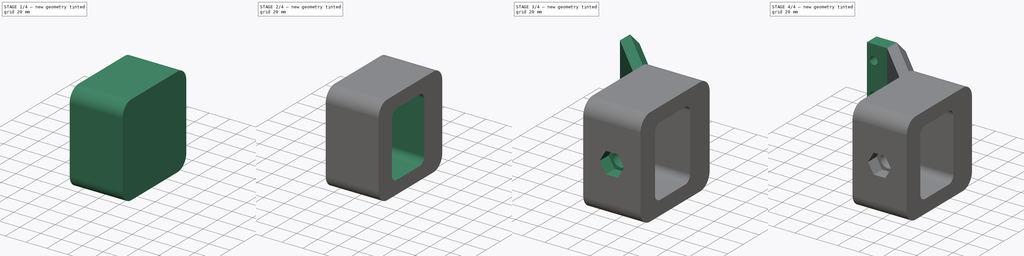
[diagram: build sequence overview — one tinted view per stage of 4, left to right]
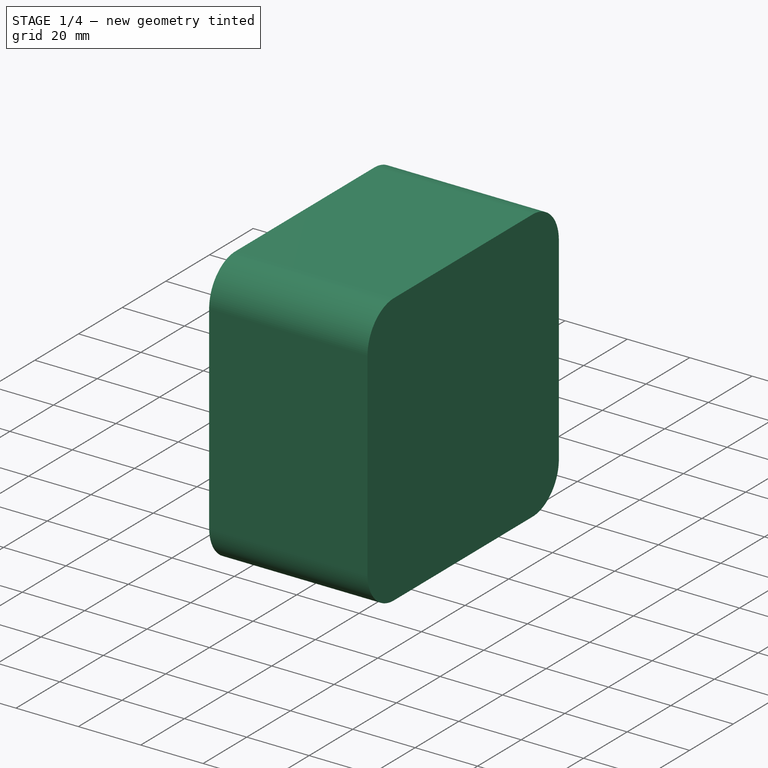
[diagram: stage 1 of 4 — iso view after this stage's code; geometry added in this stage tinted green]
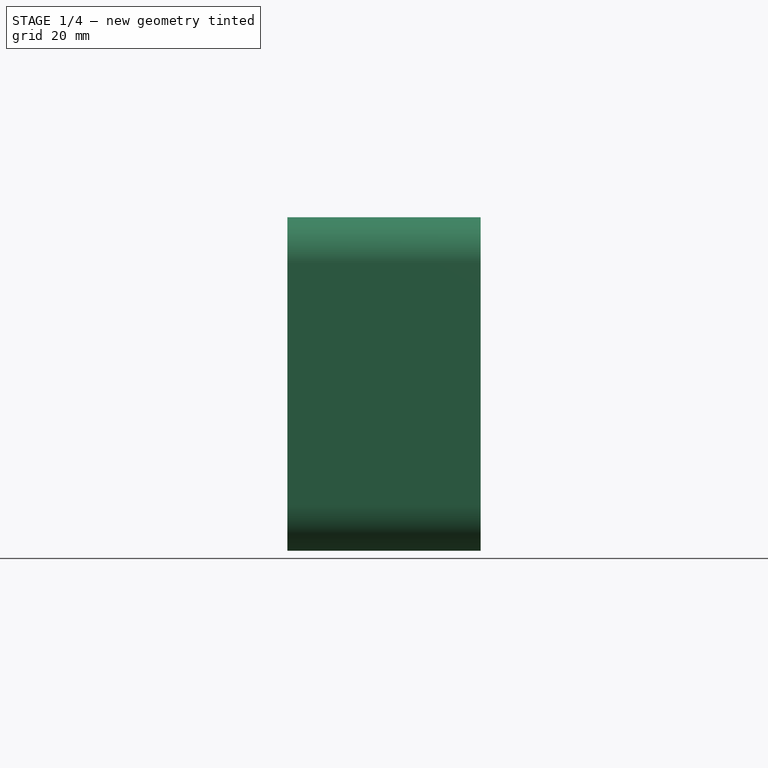
[diagram: stage 1 of 4 — front view after this stage's code; geometry added in this stage tinted green]
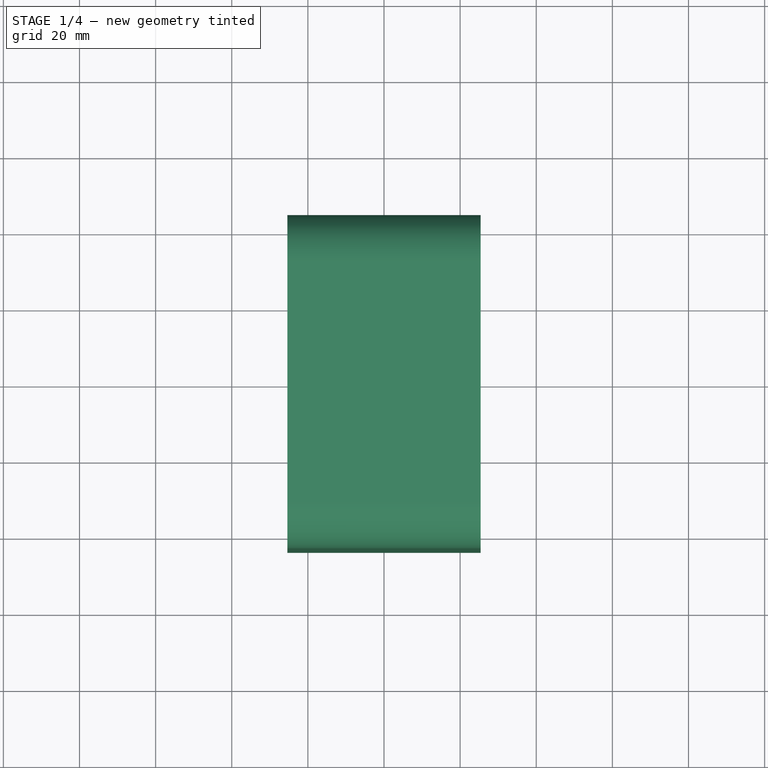
[diagram: stage 1 of 4 — top view after this stage's code; geometry added in this stage tinted green]
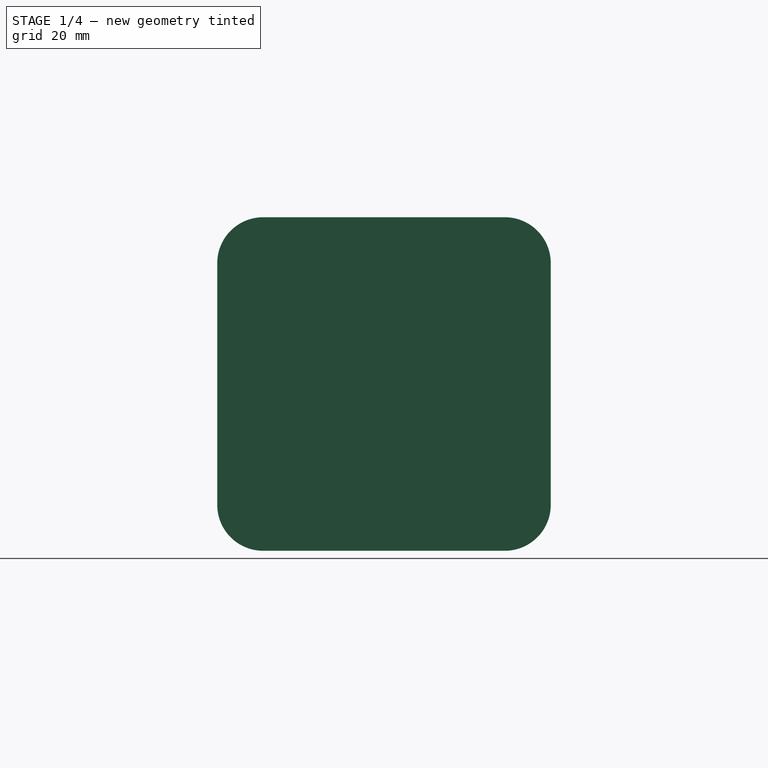
[diagram: stage 1 of 4 — right view after this stage's code; geometry added in this stage tinted green]
FCSTD DOCUMENT  (FreeCAD 0.18R16131 (Git))
Label: EndPlug
License: All rights reserved
LicenseURL: http://en.wikipedia.org/wiki/All_rights_reserved
objects: Sketcher::SketchObject×7, PartDesign::Pocket×4, PartDesign::Pad×2, PartDesign::Fillet×2, Spreadsheet::Sheet×1, PartDesign::AdditivePipe×1
note: 23 computed .brp shape members not serialized (recipe doc carries the construction recipe); baked Part::Feature solids carry a one-line shape summary decoded from their .brp

FEATURE [Spreadsheet::Sheet] Spreadsheet  label="p"
  cells = A1=Title; B1=Desired Dimension (in); C1=Converted to mm; A2=Width; B2=4; C2(w)==B2 * 25.4; A3=Length; B3=12; C3(length)==B3 * 25.4; A4=Wall Thickness; B4=0.25; C4(th)==B4 * 25.4; A5=Tolerance; B5=0.05; C5(tol)==B5 * 25.4; A6=BevelEdge; B6=0.75; C6(bevel)==B6 * 25.4; A8=Bracket wall thickness; B8=0.5; C8(brack_th)==B8 * 25.4; A9=Bracket depth; B9=2; C9(brack_d)==B9 * 25.4; A10=Set screw diameter; B10=0.5; C10(set_screw_d)==B10 * 25.4 + 1; A11=Set screw nut diameter; B11=0.85; C11(set_screw_nut_d)==B11 * 25.4 + 1; A13=Idler offset spacing; B13=1.5; C13(idler_offset)==B13 * 25.4
FEATURE [Sketcher::SketchObject] Sketch003  label="HoleSketch"
  MapMode = 5
  Placement = pos=(0,0,0) rot=(0.57735,0.57735,0.57735;2.0944rad)
  Support = -> [YZ_Plane001]
  expr: Constraints[7] = p.w - p.th * 2 - p.tol - p.brack_th * 2
  sketch-geometry (4):
    g0: LineSegment StartX=-25.4 StartY=31.115 StartZ=0 EndX=19.05 EndY=31.115 EndZ=0
    g1: LineSegment StartX=19.05 StartY=31.115 StartZ=0 EndX=19.05 EndY=-31.115 EndZ=0
    g2: LineSegment StartX=19.05 StartY=-31.115 StartZ=0 EndX=-25.4 EndY=-31.115 EndZ=0
    g3: LineSegment StartX=-25.4 StartY=-31.115 StartZ=0 EndX=-25.4 EndY=31.115 EndZ=0
  constraints (11):
    c: Coincident(g0,g1)
    c: Coincident(g1,g2)
    c: Coincident(g2,g3)
    c: Coincident(g3,g0)
    c: Horizontal(g2)
    c: Vertical(g3)
    c: Symmetric(g0,g1,g-1)
    c: DistanceY(g1,g0) = 62.23
    c: DistanceX(g0,g0) = 44.45
    c: Horizontal(g0,g0)
    c: DistanceX(g-1,g0) = 19.05
FEATURE [Sketcher::SketchObject] Sketch002  label="BodySketch"
  MapMode = 5
  Placement = pos=(0,0,0) rot=(0.57735,0.57735,0.57735;2.0944rad)
  Support = -> [YZ_Plane001]
  expr: Constraints[8] = p.w - p.th * 2 - p.tol
  sketch-geometry (4):
    g0: LineSegment StartX=-43.815 StartY=43.815 StartZ=0 EndX=43.815 EndY=43.815 EndZ=0
    g1: LineSegment StartX=43.815 StartY=43.815 StartZ=0 EndX=43.815 EndY=-43.815 EndZ=0
    g2: LineSegment StartX=43.815 StartY=-43.815 StartZ=0 EndX=-43.815 EndY=-43.815 EndZ=0
    g3: LineSegment StartX=-43.815 StartY=-43.815 StartZ=0 EndX=-43.815 EndY=43.815 EndZ=0
  constraints (9):
    c: Coincident(g0,g1)
    c: Coincident(g1,g2)
    c: Coincident(g2,g3)
    c: Coincident(g3,g0)
    c: Horizontal(g2)
    c: Vertical(g3)
    c: Symmetric(g0,g0,g-2)
    c: Symmetric(g1,g0,g-1)
    c: DistanceX(g0,g0) = 87.63
FEATURE [PartDesign::Pad] Pad001  label="BodyPad"
  Length = 50.8
  Length2 = 100.076
  Midplane = true
  Placement = pos=(0,0,0) rot=(0.57735,0.57735,0.57735;2.0944rad)
  Profile = -> Sketch002
  Type = 0
  expr: Length = p.brack_d
FEATURE [PartDesign::Fillet] Fillet002  label="OuterBevel001"
  Base = -> Pad001 [Edge1,Edge8,Edge5,Edge2]
  BaseFeature = -> Pad001
  Placement = pos=(0,0,0) rot=(0.57735,0.57735,0.57735;2.0944rad)
  Radius = 12.065
  expr: Radius = p.bevel - p.th - p.tol / 2
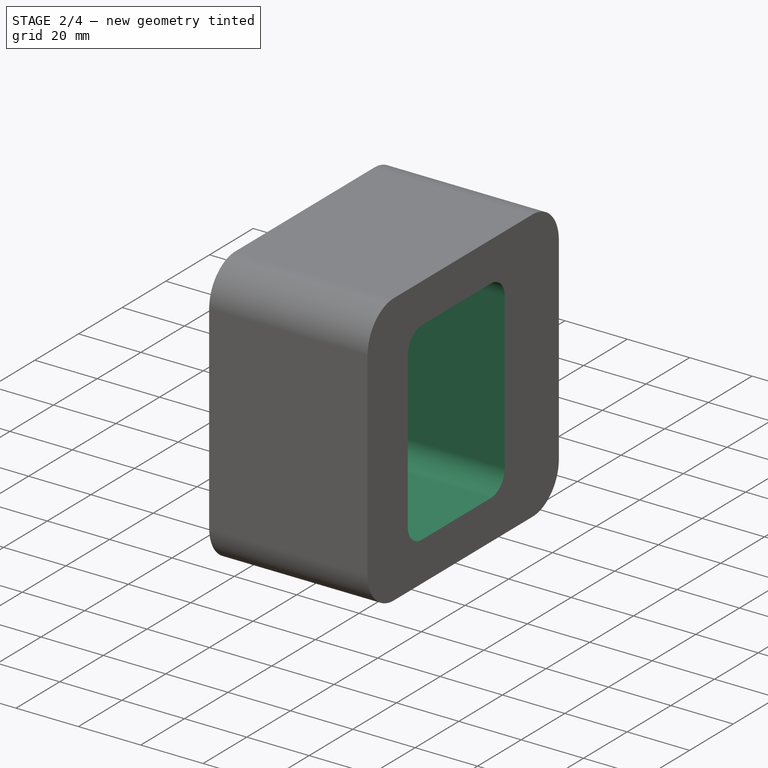
[diagram: stage 2 of 4 — iso view after this stage's code; geometry added in this stage tinted green]
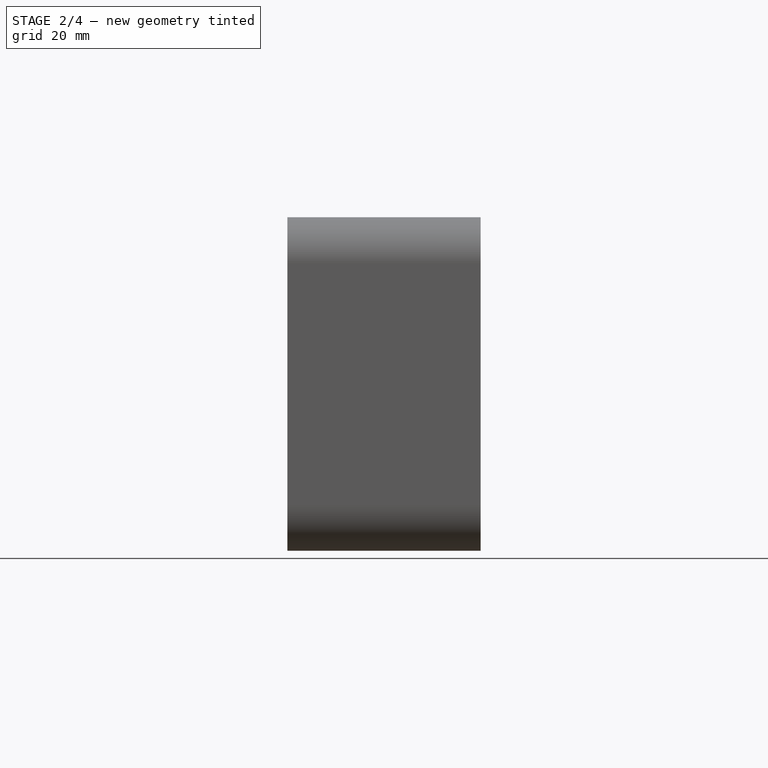
[diagram: stage 2 of 4 — front view after this stage's code; geometry added in this stage tinted green]
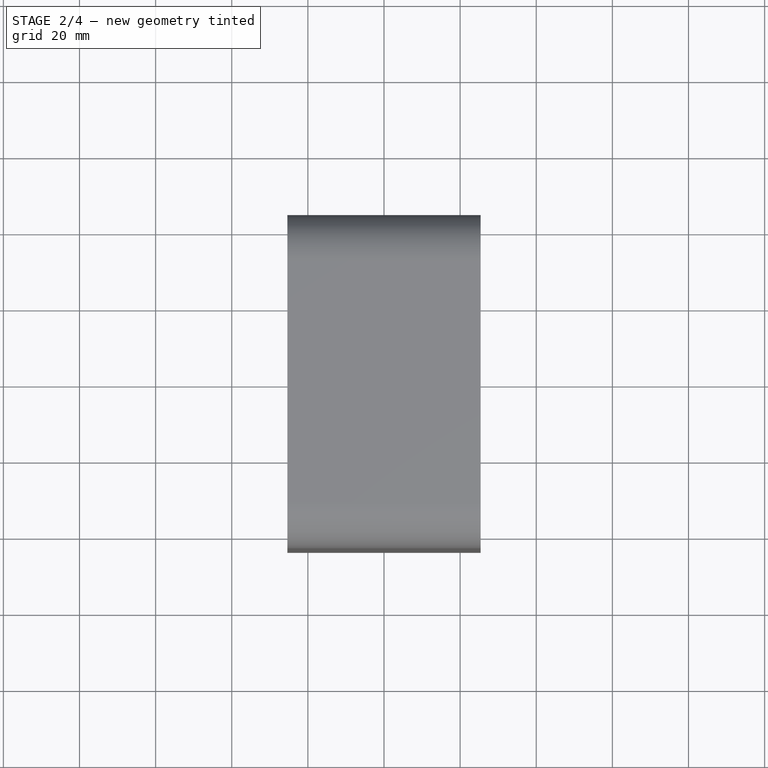
[diagram: stage 2 of 4 — top view after this stage's code; geometry added in this stage tinted green]
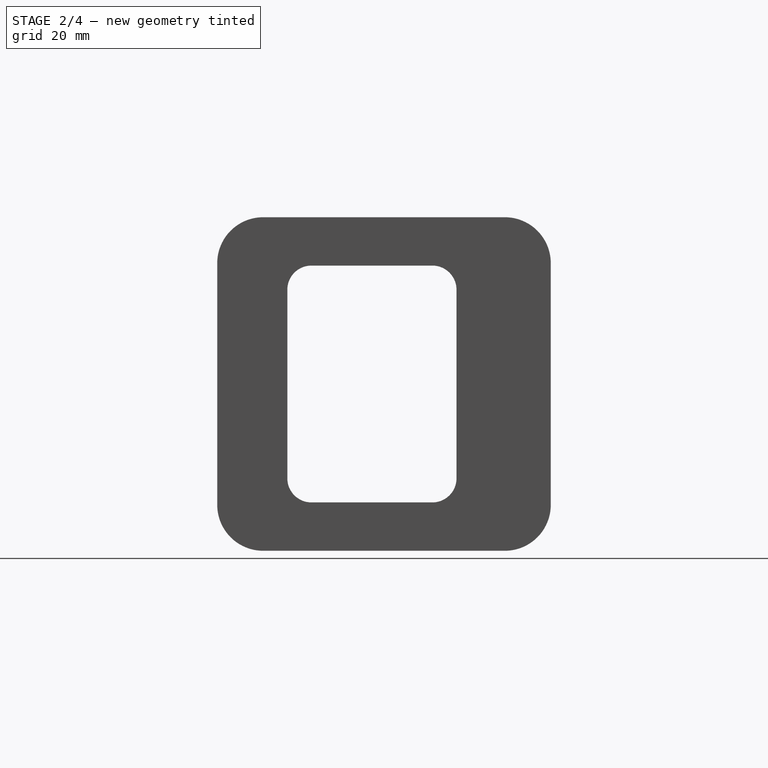
[diagram: stage 2 of 4 — right view after this stage's code; geometry added in this stage tinted green]
FEATURE [PartDesign::Pocket] Pocket001  label="HolePocket"
  BaseFeature = -> Fillet002
  Length = 5.08
  Length2 = 100.076
  Midplane = true
  Placement = pos=(0,0,0) rot=(0.57735,0.57735,0.57735;2.0944rad)
  Profile = -> Sketch003
  Reversed = true
  Type = 1
FEATURE [PartDesign::Fillet] Fillet003  label="InnerBevel001"
  Base = -> Pocket001 [Edge35,Edge33,Edge34,Edge36]
  BaseFeature = -> Pocket001
  Placement = pos=(0,0,0) rot=(0.57735,0.57735,0.57735;2.0944rad)
  Radius = 6.35
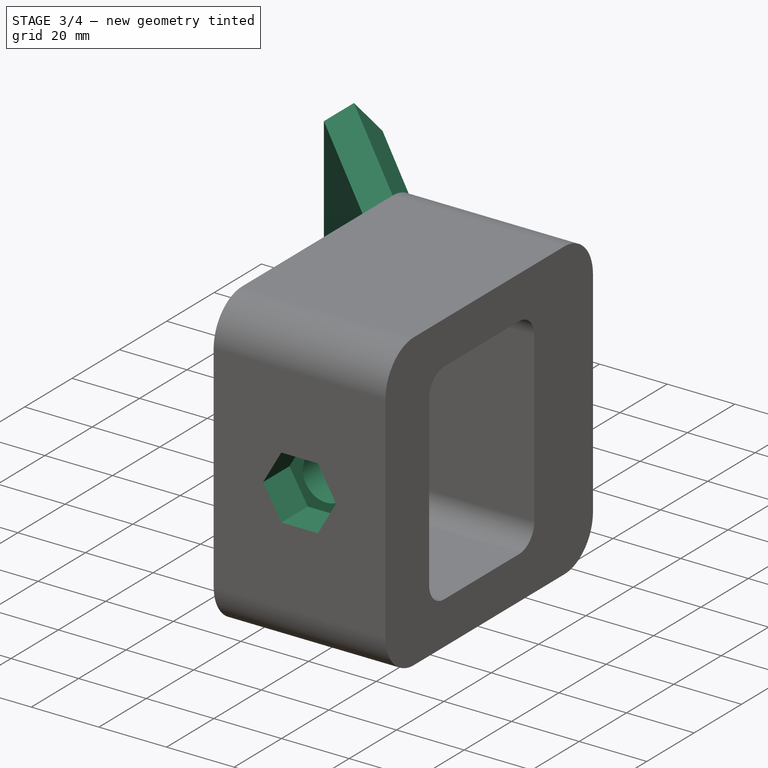
[diagram: stage 3 of 4 — iso view after this stage's code; geometry added in this stage tinted green]
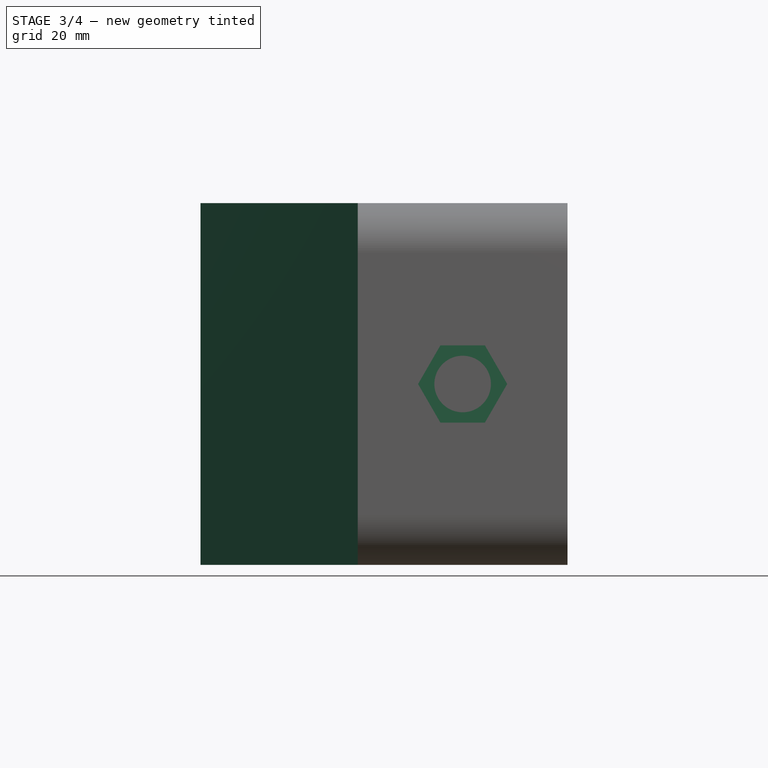
[diagram: stage 3 of 4 — front view after this stage's code; geometry added in this stage tinted green]
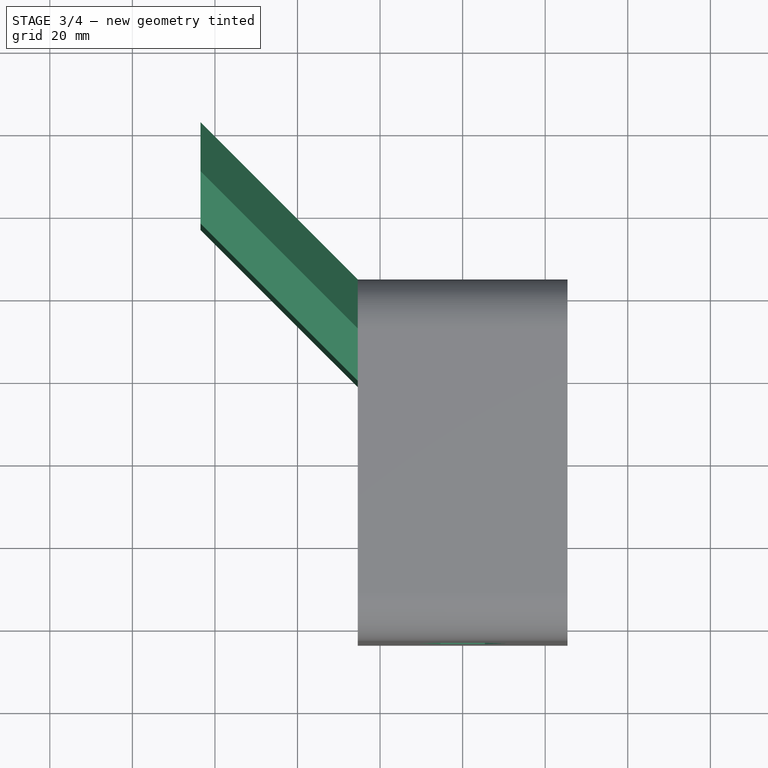
[diagram: stage 3 of 4 — top view after this stage's code; geometry added in this stage tinted green]
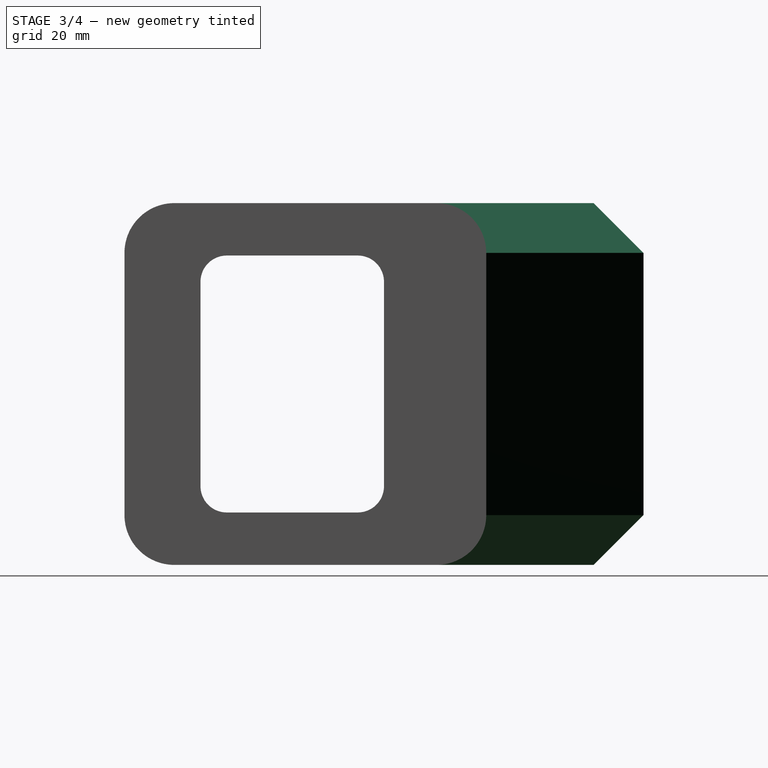
[diagram: stage 3 of 4 — right view after this stage's code; geometry added in this stage tinted green]
FEATURE [Sketcher::SketchObject] Sketch004  label="SetScrewSketch"
  MapMode = 5
  Placement = pos=(-1.12e-14,-25.4,5.6e-15) rot=(0.57735,0.57735,0.57735;4.18879rad)
  Support = -> [Fillet003]
  expr: Constraints[1] = p.set_screw_d / 2
  sketch-geometry (1):
    g0: Circle CenterX=0 CenterY=0 CenterZ=0 NormalX=0 NormalY=0 NormalZ=1 AngleXU=0 Radius=6.85
  constraints (2):
    c: Coincident(g0,g-1)
    c: Radius(g0) = 6.85
FEATURE [PartDesign::Pocket] Pocket002  label="SetScrewPocket"
  BaseFeature = -> Fillet003
  Length = 5.08
  Length2 = 100.076
  Placement = pos=(0,0,0) rot=(0.57735,0.57735,0.57735;2.0944rad)
  Profile = -> Sketch004
  Type = 1
FEATURE [Sketcher::SketchObject] Sketch005  label="SetScrewNutCatchSketch"
  MapMode = 5
  Placement = pos=(-1.9e-14,-43.815,4.4e-14) rot=(-0.57735,-0.57735,0.57735;4.18879rad)
  Support = -> [Pocket002]
  expr: Constraints[19] = p.set_screw_nut_d / 2
  sketch-geometry (7):
    g0: LineSegment StartX=9.34874 StartY=-5.3975 StartZ=0 EndX=9.34874 EndY=5.3975 EndZ=0
    g1: LineSegment StartX=9.34874 StartY=5.3975 StartZ=0 EndX=0 EndY=10.795 EndZ=0
    g2: LineSegment StartX=0 StartY=10.795 StartZ=0 EndX=-9.34874 EndY=5.3975 EndZ=0
    g3: LineSegment StartX=-9.34874 StartY=5.3975 StartZ=0 EndX=-9.34874 EndY=-5.3975 EndZ=0
    g4: LineSegment StartX=-9.34874 StartY=-5.3975 StartZ=0 EndX=0 EndY=-10.795 EndZ=0
    g5: LineSegment StartX=0 StartY=-10.795 StartZ=0 EndX=9.34874 EndY=-5.3975 EndZ=0
    g6: Circle [constr] CenterX=0 CenterY=0 CenterZ=0 NormalX=0 NormalY=0 NormalZ=1 AngleXU=0 Radius=10.795
  constraints (16):
    c: Coincident(g0,g1)
    c: Coincident(g1,g2)
    c: Coincident(g2,g3)
    c: Coincident(g3,g4)
    c: Coincident(g4,g5)
    c: Coincident(g5,g0)
    c: Equal(g0, g1-g5) x5
    c: PointOnObject(g0,g6)
    c: PointOnObject(g1,g6)
    c: PointOnObject(g2,g6)
    c: PointOnObject(g3,g6)
    c: PointOnObject(g4,g6)
    c: PointOnObject(g5,g6)
    c: Coincident(g6,g-1)
    c: Vertical(g1,g4)
    c: Radius(g6) = 11.295
FEATURE [PartDesign::Pocket] Pocket003  label="SetScrewNutCatchPocket"
  BaseFeature = -> Pocket002
  Length = 11.176
  Length2 = 100.076
  Placement = pos=(0,0,0) rot=(0.57735,0.57735,0.57735;2.0944rad)
  Profile = -> Sketch005
  Type = 0
FEATURE [Sketcher::SketchObject] Sketch006  label="IdlerBracketSketch1"
  ExternalGeometry = -> [Pocket003]
  MapMode = 5
  Placement = pos=(-25.4,5.6e-15,-5.6e-15) rot=(0.57735,0.57735,-0.57735;4.18879rad)
  Support = -> [Pocket003]
  sketch-geometry (7):
    g0: LineSegment StartX=19.05 StartY=43.815 StartZ=0 EndX=31.75 EndY=43.815 EndZ=0
    g1: LineSegment StartX=31.75 StartY=-43.815 StartZ=0 EndX=19.05 EndY=-43.815 EndZ=0
    g2: LineSegment StartX=19.05 StartY=-43.815 StartZ=0 EndX=19.05 EndY=24.765 EndZ=0
    g3: LineSegment StartX=31.75 StartY=43.815 StartZ=0 EndX=43.815 EndY=31.75 EndZ=0
    g4: LineSegment StartX=19.05 StartY=24.765 StartZ=0 EndX=19.05 EndY=43.815 EndZ=0
    g5: LineSegment StartX=43.815 StartY=-31.75 StartZ=0 EndX=43.815 EndY=31.75 EndZ=0
    g6: LineSegment StartX=31.75 StartY=-43.815 StartZ=0 EndX=43.815 EndY=-31.75 EndZ=0
  constraints (16):
    c: Horizontal(g0)
    c: Horizontal(g1)
    c: Vertical(g2)
    c: Coincident(g4,g-3)
    c: Coincident(g0,g4)
    c: Coincident(g3,g0)
    c: Coincident(g3,g5)
    c: Vertical(g0,g4)
    c: Coincident(g3,g-4)
    c: Coincident(g5,g-4)
    c: Coincident(g5,g6)
    c: Coincident(g1,g6)
    c: Coincident(g1,g2)
    c: Coincident(g2,g4)
    c: Coincident(g1,g-6)
    c: Coincident(g-7,g0)
FEATURE [Sketcher::SketchObject] Sketch007  label="45DegAlignmentSketch"
  ExternalGeometry = -> [Pocket003]
  MapMode = 5
  Placement = pos=(-1.23e-14,-3.8265e-10,43.815) rot=(0,0,-1;1.5708rad)
  Support = -> [Pocket003]
  expr: Constraints[6] = p.idler_offset
  sketch-geometry (3):
    g0: LineSegment StartX=-31.75 StartY=-25.4 StartZ=0 EndX=-69.85 EndY=-63.5 EndZ=0
    g1: LineSegment StartX=-69.85 StartY=-63.5 StartZ=0 EndX=-31.75 EndY=-63.5 EndZ=0
    g2: LineSegment StartX=-31.75 StartY=-63.5 StartZ=0 EndX=-31.75 EndY=-25.4 EndZ=0
  constraints (8):
    c: Coincident(g0,g-3)
    c: Coincident(g0,g2)
    c: Coincident(g1,g2)
    c: Vertical(g1,g0)
    c: Coincident(g0,g1)
    c: Horizontal(g0,g1)
    c: DistanceY(g2,g2) = 38.1
    c: Equal(g1,g2)
FEATURE [PartDesign::AdditivePipe] AdditivePipe  label="45DegExtrusionPipe"
  AuxilleryCurvelinear = true
  AuxillerySpineTangent = false
  BaseFeature = -> Pocket003
  Binormal = (0,0,0)
  Mode = 0
  Placement = pos=(0,0,0) rot=(0.57735,0.57735,0.57735;2.0944rad)
  Profile = -> Sketch006
  Spine = -> Sketch007 [Edge1]
  SpineTangent = false
  Transformation = 0
  Transition = 0
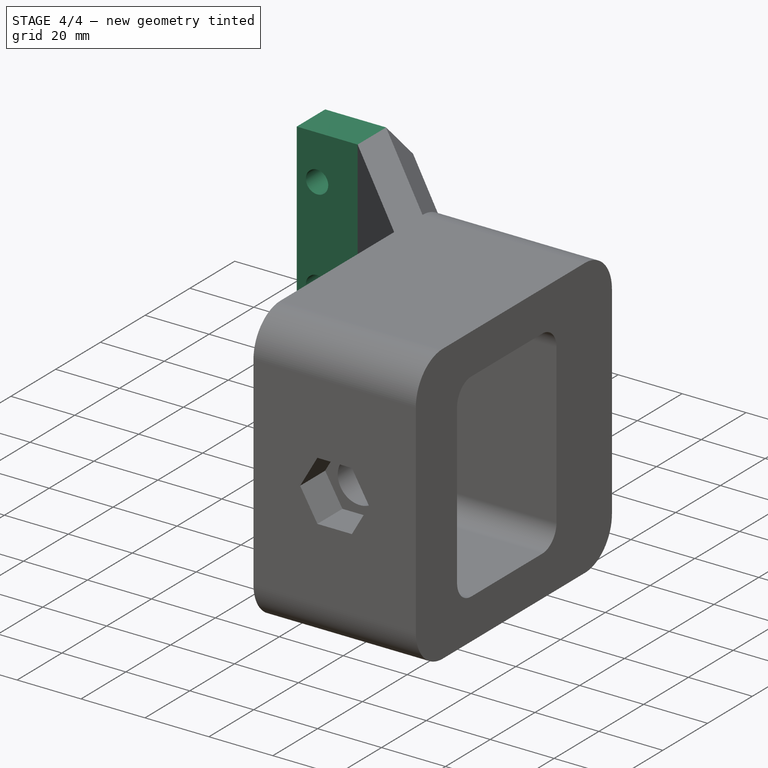
[diagram: stage 4 of 4 — iso view after this stage's code; geometry added in this stage tinted green]
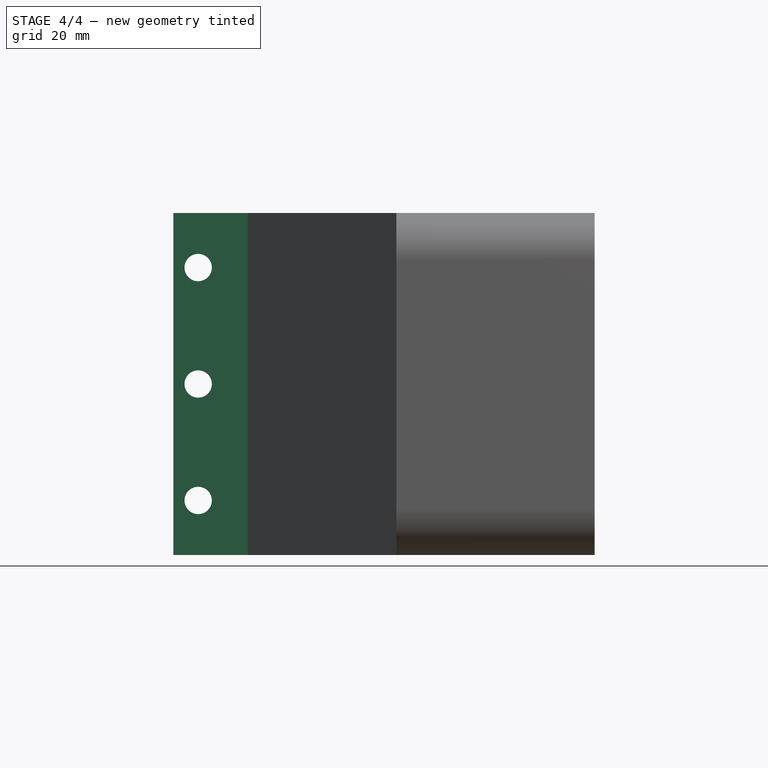
[diagram: stage 4 of 4 — front view after this stage's code; geometry added in this stage tinted green]
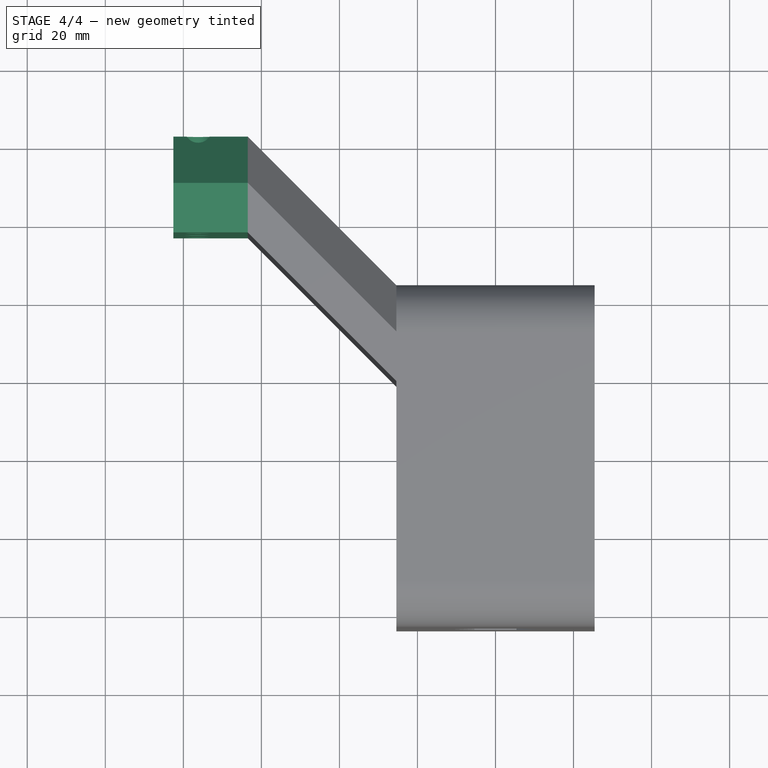
[diagram: stage 4 of 4 — top view after this stage's code; geometry added in this stage tinted green]
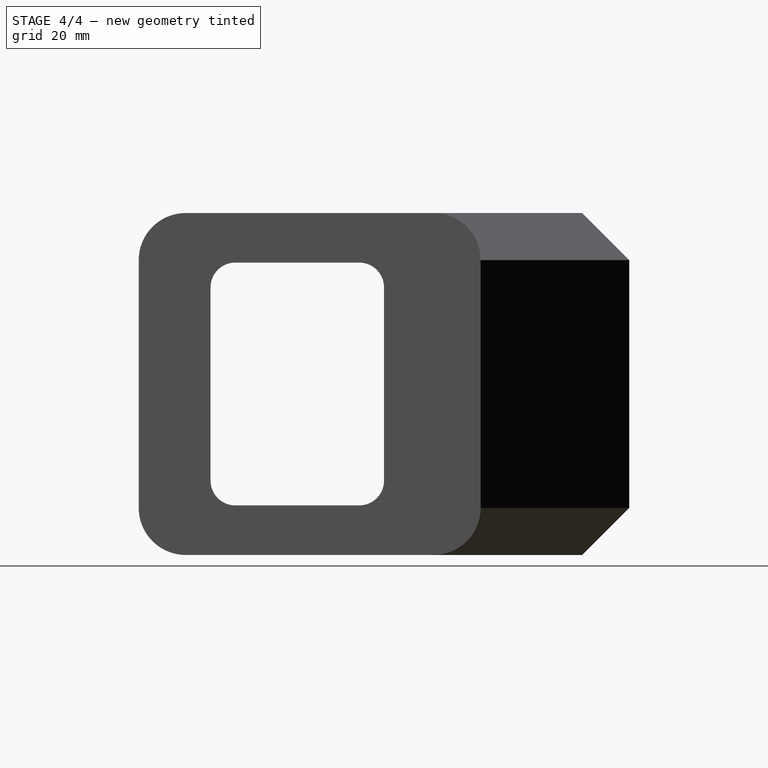
[diagram: stage 4 of 4 — right view after this stage's code; geometry added in this stage tinted green]
FEATURE [PartDesign::Pad] Pad002  label="IdlerPad"
  BaseFeature = -> AdditivePipe
  Length = 19.05
  Length2 = 100.076
  Placement = pos=(0,0,0) rot=(0.57735,0.57735,0.57735;2.0944rad)
  Profile = -> AdditivePipe [Face20]
  Type = 0
FEATURE [Sketcher::SketchObject] Sketch008  label="ScrewHoleSketch"
  ExternalGeometry = -> [Pad002]
  MapMode = 5
  Placement = pos=(5.09e-14,57.15,-2.23e-14) rot=(-0.57735,-0.57735,0.57735;4.18879rad)
  Support = -> [Pad002]
  sketch-geometry (3):
    g0: Circle CenterX=-29.845 CenterY=-76.2 CenterZ=0 NormalX=0 NormalY=0 NormalZ=1 AngleXU=0 Radius=3.5
    g1: Circle CenterX=0 CenterY=-76.2 CenterZ=0 NormalX=0 NormalY=0 NormalZ=1 AngleXU=0 Radius=3.5
    g2: Circle CenterX=29.845 CenterY=-76.2 CenterZ=0 NormalX=0 NormalY=0 NormalZ=1 AngleXU=0 Radius=3.5
  constraints (8):
    c: Radius(g0) = 3.5
    c: Equal(g0,g1)
    c: Equal(g0,g2)
    c: Horizontal(g0,g1)
    c: Symmetric(g2,g0,g-2)
    c: PointOnObject(g1,g-2)
    c: DistanceY(g1,g-3) = 12.7
    c: DistanceX(g0,g2) = 59.69
FEATURE [PartDesign::Pocket] Pocket004  label="ScrewHolePocket"
  BaseFeature = -> Pad002
  Length = 5.08
  Length2 = 100.076
  Placement = pos=(0,0,0) rot=(0.57735,0.57735,0.57735;2.0944rad)
  Profile = -> Sketch008
  Type = 1
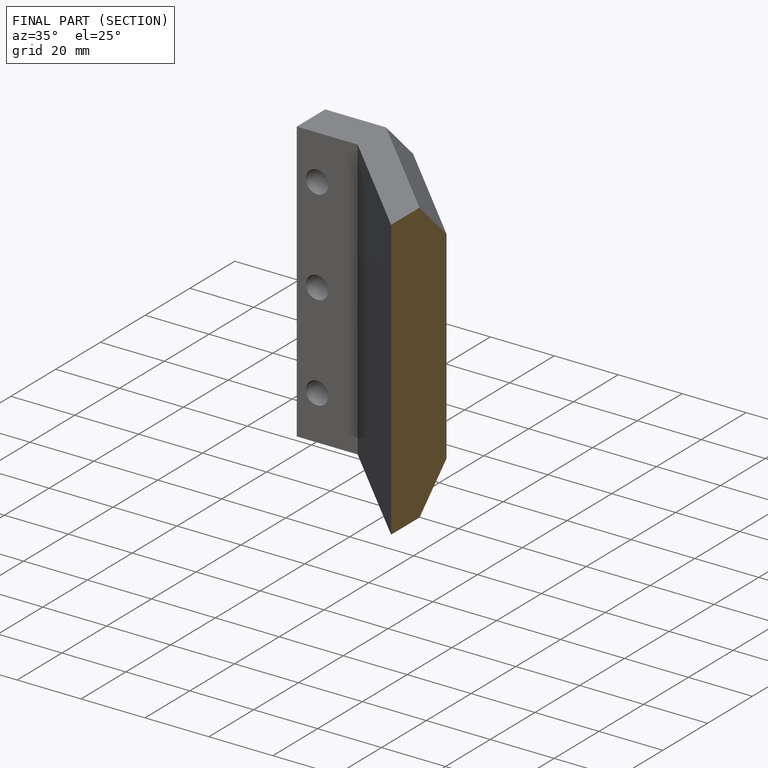
[diagram: finished part — half-section view (interior)]
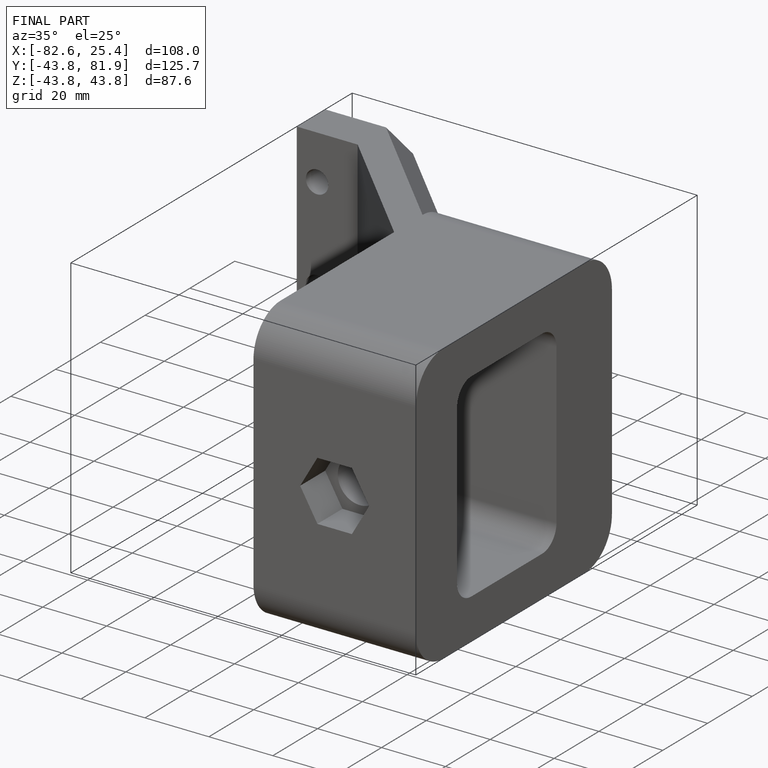
[diagram: finished part — iso view with bounding-box wireframe]
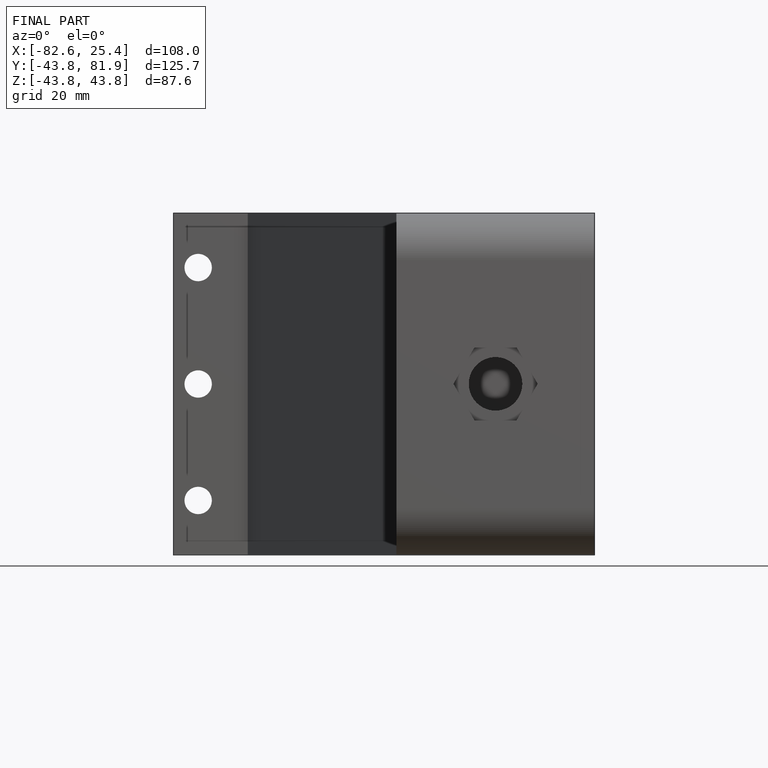
[diagram: finished part — front view with bounding-box wireframe]
